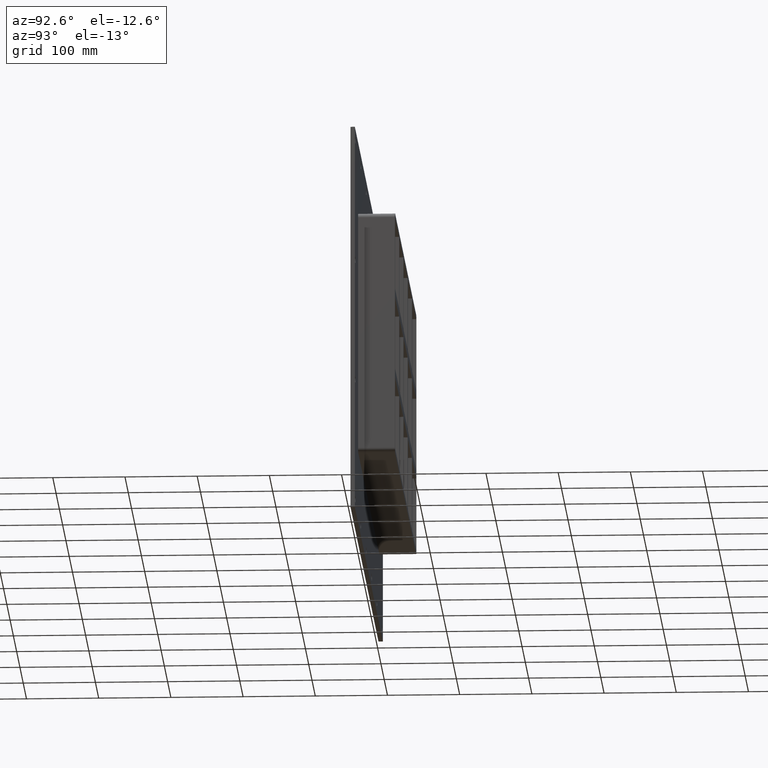
[diagram: clean part render]
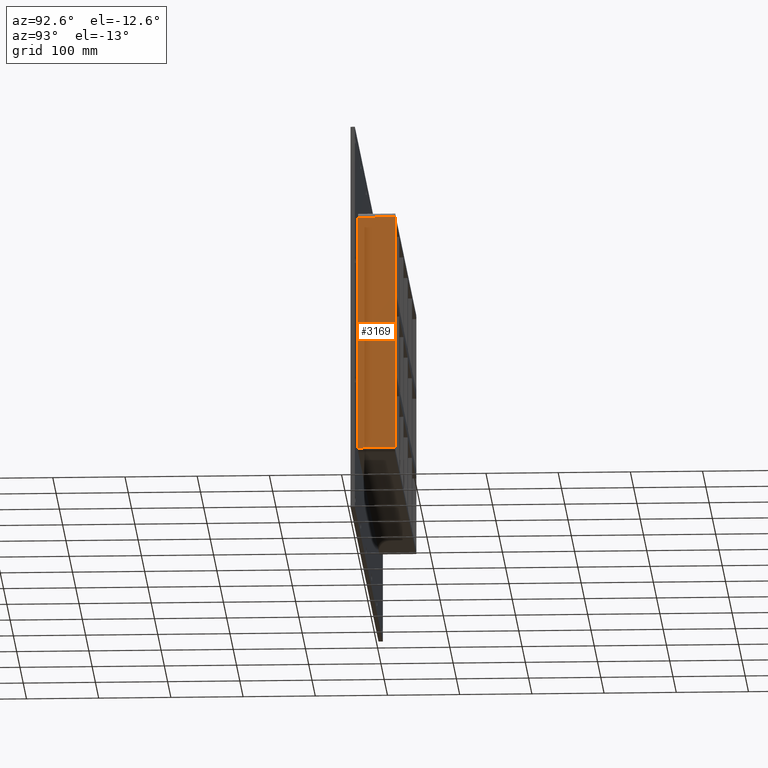
[diagram: same view with one face highlighted and labeled with its STEP entity id]
A machine part, auxiliary view. The second image highlights one B-rep face of the part: STEP entity #3169.
In plain terms, the highlighted planar face has unit normal (1, 0, 0).
Its self-contained STEP definition (entity closure, byte-faithful):
#1295=CARTESIAN_POINT('',(327.24999999999994,57.0,-163.5));
#1296=VERTEX_POINT('',#1295);
#1346=CARTESIAN_POINT('',(327.24999999999994,57.0,163.5));
#1347=VERTEX_POINT('',#1346);
#1355=CARTESIAN_POINT('',(327.24999999999994,57.0,163.5));
#1356=DIRECTION('',(0.0,0.0,-1.0));
#1357=VECTOR('',#1356,327.0);
#1358=LINE('',#1355,#1357);
#1359=EDGE_CURVE('',#1347,#1296,#1358,.T.);
#2802=CARTESIAN_POINT('',(327.24999999999994,6.000000000000001,-163.5));
#2803=VERTEX_POINT('',#2802);
#2811=CARTESIAN_POINT('',(327.24999999999994,6.000000000000001,163.5));
#2812=VERTEX_POINT('',#2811);
#2813=CARTESIAN_POINT('',(327.24999999999994,6.000000000000001,163.5));
#2814=DIRECTION('',(0.0,0.0,-1.0));
#2815=VECTOR('',#2814,327.0);
#2816=LINE('',#2813,#2815);
#2817=EDGE_CURVE('',#2812,#2803,#2816,.T.);
#3120=CARTESIAN_POINT('',(327.24999999999994,6.000000000000001,163.5));
#3121=DIRECTION('',(0.0,1.0,0.0));
#3122=VECTOR('',#3121,51.0);
#3123=LINE('',#3120,#3122);
#3124=EDGE_CURVE('',#2812,#1347,#3123,.T.);
#3153=CARTESIAN_POINT('',(327.24999999999994,0.0,169.50000000000003));
#3154=DIRECTION('',(1.0,0.0,0.0));
#3155=DIRECTION('',(0.0,0.0,-1.0));
#3156=AXIS2_PLACEMENT_3D('',#3153,#3154,#3155);
#3157=PLANE('',#3156);
#3158=ORIENTED_EDGE('',*,*,#2817,.T.);
#3159=CARTESIAN_POINT('',(327.24999999999994,57.0,-163.5));
#3160=DIRECTION('',(0.0,-1.0,0.0));
#3161=VECTOR('',#3160,51.0);
#3162=LINE('',#3159,#3161);
#3163=EDGE_CURVE('',#1296,#2803,#3162,.T.);
#3164=ORIENTED_EDGE('',*,*,#3163,.F.);
#3165=ORIENTED_EDGE('',*,*,#1359,.F.);
#3166=ORIENTED_EDGE('',*,*,#3124,.F.);
#3167=EDGE_LOOP('',(#3158,#3164,#3165,#3166));
#3168=FACE_OUTER_BOUND('',#3167,.T.);
#3169=ADVANCED_FACE('',(#3168),#3157,.T.);